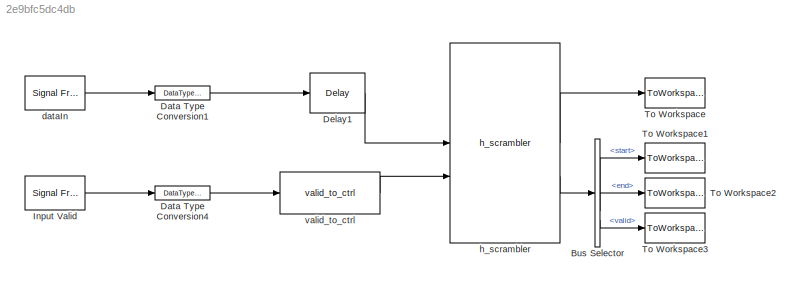
MODEL slx_2e9bfc5dc4db
KIND model
CONFIG AbsTol = auto
CONFIG EnableMultiTasking = off
CONFIG FixedStep = auto
CONFIG MaxStep = auto
CONFIG MinStep = auto
CONFIG RelTol = 1e-3
CONFIG SampleTimeConstraint = Unconstrained
CONFIG SolverName = FixedStepDiscrete
CONFIG StartTime = 0.0
CONFIG StopTime = stopTime
BLOCK [BusSelector] Bus Selector
  OutputSignals = start,end,valid
BLOCK [DataTypeConversion] Data Type Conversion1
  OutDataTypeStr = boolean
  RndMeth = Floor
  SaturateOnIntegerOverflow = off
BLOCK [DataTypeConversion] Data Type Conversion4
  OutDataTypeStr = boolean
  RndMeth = Floor
  SaturateOnIntegerOverflow = off
BLOCK [Delay] Delay1
  DelayLength = 1
  InitialCondition = 0
  InputPortMap = u0
  UseCircularBuffer = on
  UserDataPersistent = on
BLOCK [Reference] Input Valid  REF=dspsrcs4/Signal From
Workspace
  SourceBlock = dspsrcs4/Signal From\nWorkspace
  SourceType = Signal From Workspace
BLOCK [ToWorkspace] To Workspace
  MaxDataPoints = inf
  SampleTime = 1/fs
  Save2DSignal = 2-D array (concatenate along first dimension)
  VariableName = dataOut
BLOCK [ToWorkspace] To Workspace1
  MaxDataPoints = inf
  SampleTime = 1/fs
  Save2DSignal = 2-D array (concatenate along first dimension)
  VariableName = startOut
BLOCK [ToWorkspace] To Workspace2
  MaxDataPoints = inf
  SampleTime = 1/fs
  Save2DSignal = 2-D array (concatenate along first dimension)
  VariableName = endOut
BLOCK [ToWorkspace] To Workspace3
  MaxDataPoints = inf
  SampleTime = 1/fs
  Save2DSignal = 2-D array (concatenate along first dimension)
  VariableName = validOut
BLOCK [Reference] dataIn  REF=dspsrcs4/Signal From
Workspace
  SourceBlock = dspsrcs4/Signal From\nWorkspace
  SourceType = Signal From Workspace
BLOCK [Reference] h_scrambler  REF=HDL_ieee_8021513/h_scrambler
  LibrarySourceBlock = hdlsllib/Ports &\nSubsystems/Subsystem
  SourceBlock = HDL_ieee_8021513/h_scrambler
  SourceType = SubSystem
BLOCK [Reference] valid_to_ctrl  REF=HDL_ieee_8021513/valid_to_ctrl
  SourceBlock = HDL_ieee_8021513/valid_to_ctrl
  SourceProductName = HDL IEEE 8021513
  SourceType = SubSystem
LINE Bus Selector:1 -> To Workspace1:1
LINE Bus Selector:2 -> To Workspace2:1
LINE Bus Selector:3 -> To Workspace3:1
LINE Data Type Conversion1:1 -> Delay1:1
LINE Data Type Conversion4:1 -> valid_to_ctrl:1
LINE Delay1:1 -> h_scrambler:1
LINE Input Valid:1 -> Data Type Conversion4:1
LINE dataIn:1 -> Data Type Conversion1:1
LINE h_scrambler:1 -> To Workspace:1
LINE h_scrambler:2 -> Bus Selector:1
LINE valid_to_ctrl:1 -> h_scrambler:2
